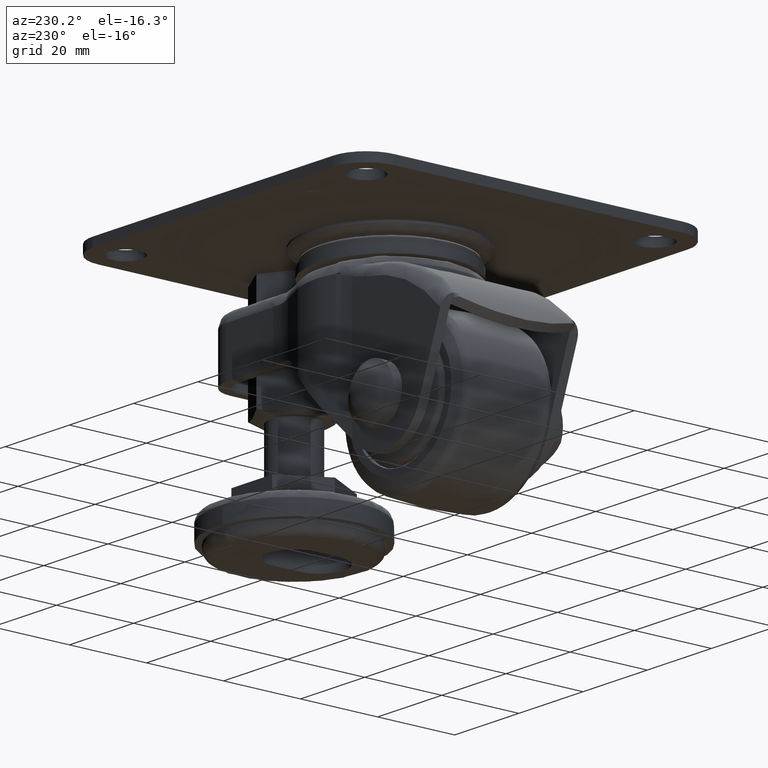
[diagram: clean part render]
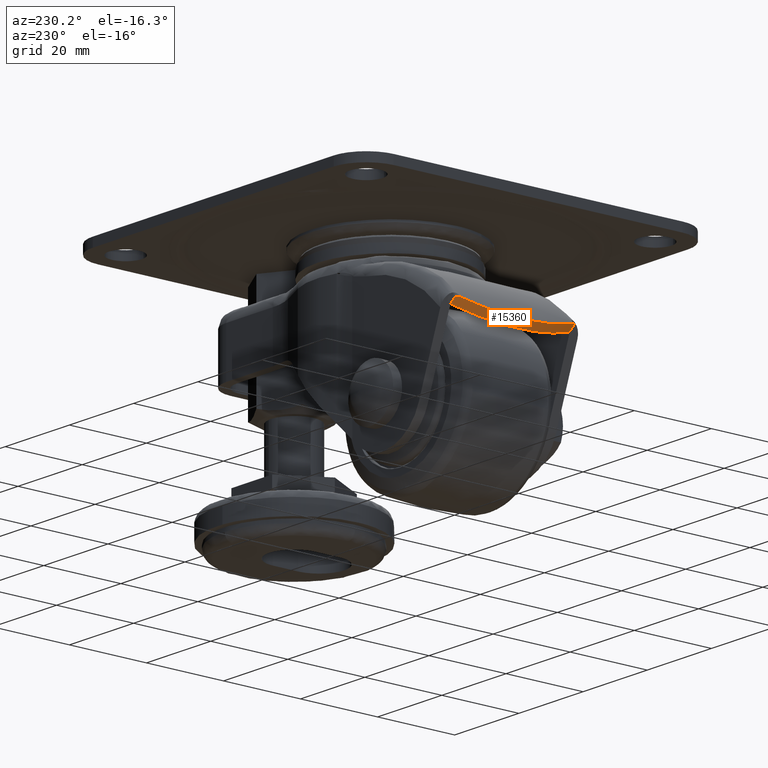
[diagram: same view with one face highlighted and labeled with its STEP entity id]
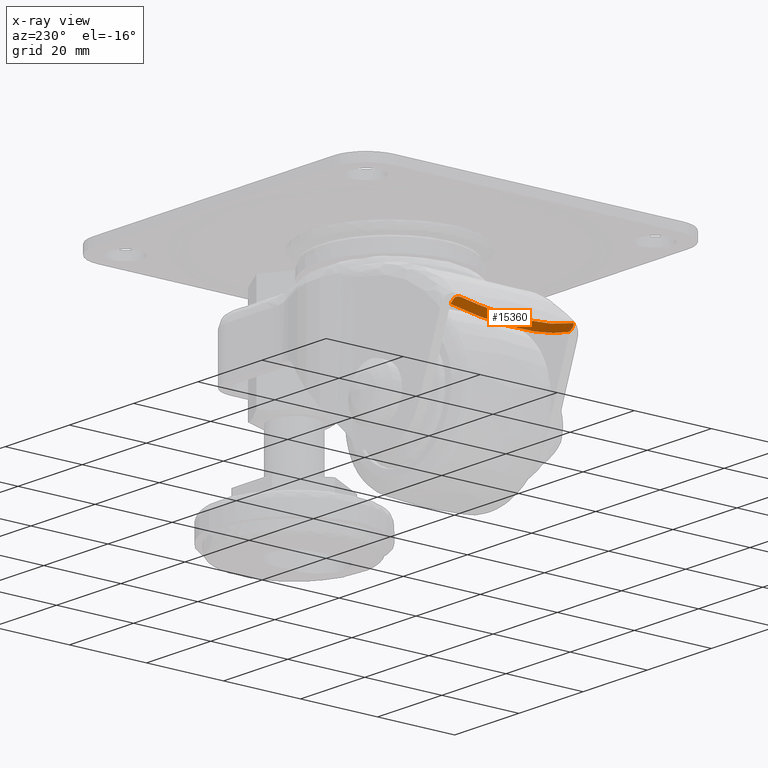
[diagram: x-ray of the same camera — body ghosted, the highlighted face saturated]
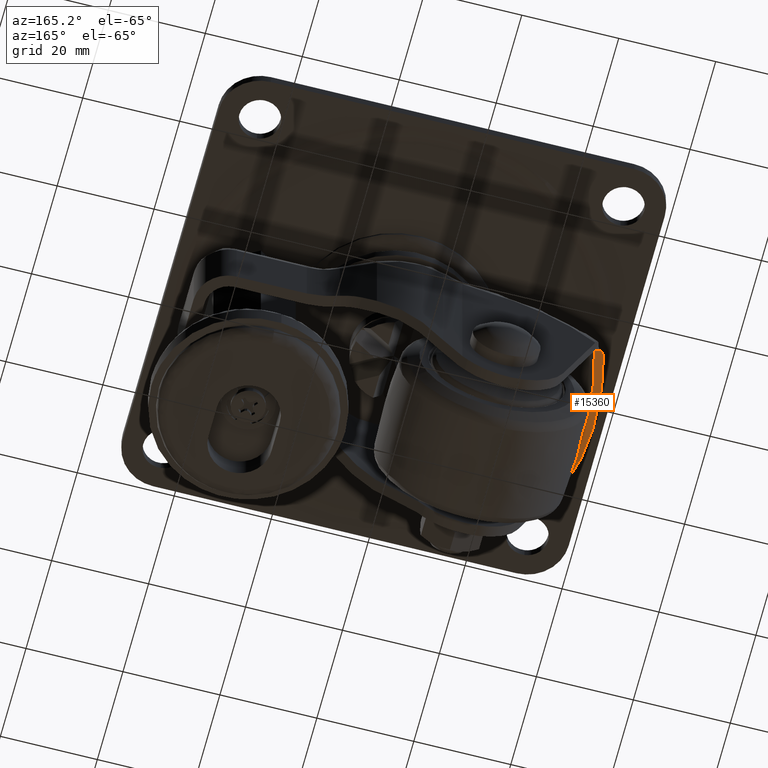
[diagram: same view with one face highlighted and labeled with its STEP entity id]
A machine part, auxiliary view. The second image highlights one B-rep face of the part: STEP entity #15360.
The next image is the same camera in x-ray: the body ghosted, the highlighted face saturated — about 0% of this face is hidden behind the body in this view.
A second angle (auxiliary view) of the same face is appended — the face is thin or edge-on in the first view.
In plain terms, the highlighted face is a freeform B-spline surface patch.
Its self-contained STEP definition (entity closure, byte-faithful):
#14622=CARTESIAN_POINT('',(-38.291130428110151,15.500000000000000,-24.245091393417798));
#14623=VERTEX_POINT('',#14622);
#14624=CARTESIAN_POINT('',(-37.403576146978452,15.500000000000000,-24.980469005644348));
#14625=VERTEX_POINT('',#14624);
#14641=CARTESIAN_POINT('',(-38.567269960919951,15.442372888455649,-24.051477014446551));
#14642=VERTEX_POINT('',#14641);
#14643=CARTESIAN_POINT('',(-38.567269960919951,15.442372888455649,-24.051477014446551));
#14644=CARTESIAN_POINT('',(-38.530455054789073,15.457184594975240,-24.072958606080888));
#14645=CARTESIAN_POINT('',(-38.493685415123430,15.469242684221211,-24.096063617767118));
#14646=CARTESIAN_POINT('',(-38.401038870963163,15.492564335049661,-24.158580234259201));
#14647=CARTESIAN_POINT('',(-38.344946439935178,15.499997955724989,-24.200503631190340));
#14648=CARTESIAN_POINT('',(-38.291130428110151,15.500000000000000,-24.245091393417798));
#14649=B_SPLINE_CURVE_WITH_KNOTS('',3,(#14643,#14644,#14645,#14646,#14647,#14648),.UNSPECIFIED.,.F.,.U.,(4,2,4),(0.792940615937839,0.874999999999997,1.0),.UNSPECIFIED.);
#14650=EDGE_CURVE('',#14642,#14623,#14649,.T.);
#14702=CARTESIAN_POINT('',(-37.341867927269647,15.322773212378950,-25.139278173644499));
#14703=VERTEX_POINT('',#14702);
#14711=CARTESIAN_POINT('',(-37.403576146978452,15.500000000000000,-24.980469005644348));
#14712=CARTESIAN_POINT('',(-37.385806023220368,15.439098316408369,-25.032455242646879));
#14713=CARTESIAN_POINT('',(-37.365099508445837,15.380110366604880,-25.085436166742650));
#14714=CARTESIAN_POINT('',(-37.341867927269647,15.322773212378950,-25.139278173644499));
#14715=QUASI_UNIFORM_CURVE('',3,(#14711,#14712,#14713,#14714),.UNSPECIFIED.,.F.,.U.);
#14716=EDGE_CURVE('',#14625,#14703,#14715,.T.);
#14881=CARTESIAN_POINT('',(-39.364622450098302,14.500000000000000,-23.943725296695408));
#14882=VERTEX_POINT('',#14881);
#14897=CARTESIAN_POINT('',(-39.364622450098302,14.500000000000000,-23.943725296695408));
#14898=CARTESIAN_POINT('',(-39.346180749021443,14.563902118176371,-23.922925437017678));
#14899=CARTESIAN_POINT('',(-39.323214529295271,14.626698842294481,-23.906215073698949));
#14900=CARTESIAN_POINT('',(-39.282307375210152,14.719319690102990,-23.887002900876549));
#14901=CARTESIAN_POINT('',(-39.267587912521407,14.749929195891591,-23.881581511590309));
#14902=CARTESIAN_POINT('',(-39.235949139587753,14.810613681160030,-23.872740867076729));
#14903=CARTESIAN_POINT('',(-39.218965256858617,14.840794261030149,-23.869313612841768));
#14904=CARTESIAN_POINT('',(-39.165017792508358,14.929777663748220,-23.862233277074932));
#14905=CARTESIAN_POINT('',(-39.125625149741353,14.986211526710090,-23.861786341068981));
#14906=CARTESIAN_POINT('',(-39.061481216353577,15.066597394215590,-23.867515155473789));
#14907=CARTESIAN_POINT('',(-39.039251776566282,15.092677098588840,-23.870498620885432));
#14908=CARTESIAN_POINT('',(-38.993039147681309,15.143355749499561,-23.878706127569810));
#14909=CARTESIAN_POINT('',(-38.968913408853822,15.168086767440551,-23.883969277260871));
#14910=CARTESIAN_POINT('',(-38.894925879053538,15.238801941387949,-23.903048719628231));
#14911=CARTESIAN_POINT('',(-38.843649150734279,15.281262396841880,-23.920024162821829));
#14912=CARTESIAN_POINT('',(-38.763797306693078,15.337816037137920,-23.952074273694461));
#14913=CARTESIAN_POINT('',(-38.736687111353000,15.355469430493660,-23.963863047420219));
#14914=CARTESIAN_POINT('',(-38.681432308334841,15.388247521869641,-23.989790700075311));
#14915=CARTESIAN_POINT('',(-38.653174808488572,15.403407878500991,-24.004001262570409));
#14916=CARTESIAN_POINT('',(-38.605811967124723,15.426119017758570,-24.029438442377430));
#14917=CARTESIAN_POINT('',(-38.586534766353388,15.434622963229151,-24.040235458682840));
#14918=CARTESIAN_POINT('',(-38.567269960919951,15.442372888455649,-24.051477014446551));
#14919=B_SPLINE_CURVE_WITH_KNOTS('',3,(#14897,#14898,#14899,#14900,#14901,#14902,#14903,#14904,#14905,#14906,#14907,#14908,#14909,#14910,#14911,#14912,#14913,#14914,#14915,#14916,#14917,#14918),.UNSPECIFIED.,.F.,.U.,(4,2,2,2,2,2,2,2,2,2,4),(0.0,0.124999999999988,0.187499999999982,0.249999999999976,0.374999999999974,0.437499999999976,0.499999999999979,0.624999999999986,0.687499999999990,0.749999999999993,0.792940615937839),.UNSPECIFIED.);
#14920=EDGE_CURVE('',#14882,#14642,#14919,.T.);
#15023=CARTESIAN_POINT('',(-38.567269960918452,-15.442372888455401,-24.051477014444298));
#15024=VERTEX_POINT('',#15023);
#15181=CARTESIAN_POINT('',(-38.291130428110151,-15.500000000000000,-24.245091393417798));
#15182=VERTEX_POINT('',#15181);
#15183=CARTESIAN_POINT('',(-38.291130428110151,-15.500000000000000,-24.245091393417798));
#15184=CARTESIAN_POINT('',(-38.344830633035173,-15.500000000000000,-24.200598420634272));
#15185=CARTESIAN_POINT('',(-38.399619621502033,-15.492802652998501,-24.159610487459311));
#15186=CARTESIAN_POINT('',(-38.483315112073527,-15.471919415017579,-24.103021324384741));
#15187=CARTESIAN_POINT('',(-38.511467550003729,-15.463262483893720,-24.084980470815559));
#15188=CARTESIAN_POINT('',(-38.549019954638013,-15.449544435776540,-24.062228949318850));
#15189=CARTESIAN_POINT('',(-38.558154201026937,-15.446038140801379,-24.056797405223250));
#15190=CARTESIAN_POINT('',(-38.567269960918452,-15.442372888455401,-24.051477014444298));
#15191=B_SPLINE_CURVE_WITH_KNOTS('',3,(#15183,#15184,#15185,#15186,#15187,#15188,#15189,#15190),.UNSPECIFIED.,.F.,.U.,(4,2,2,4),(0.0,0.125000000000019,0.187500000000022,0.207620805954866),.UNSPECIFIED.);
#15192=EDGE_CURVE('',#15182,#15024,#15191,.T.);
#15194=CARTESIAN_POINT('',(-37.403576146978452,-15.500000000000000,-24.980469005644348));
#15195=VERTEX_POINT('',#15194);
#15213=CARTESIAN_POINT('',(-37.341867927273199,-15.322773212366901,-25.139278173648801));
#15214=VERTEX_POINT('',#15213);
#15215=CARTESIAN_POINT('',(-37.341867927273199,-15.322773212366901,-25.139278173648801));
#15216=CARTESIAN_POINT('',(-37.365099508454783,-15.380110366593440,-25.085436166740450));
#15217=CARTESIAN_POINT('',(-37.385806023226273,-15.439098316398709,-25.032455242647739));
#15218=CARTESIAN_POINT('',(-37.403576146978452,-15.500000000000000,-24.980469005644348));
#15219=QUASI_UNIFORM_CURVE('',3,(#15215,#15216,#15217,#15218),.UNSPECIFIED.,.F.,.U.);
#15220=EDGE_CURVE('',#15214,#15195,#15219,.T.);
#15249=CARTESIAN_POINT('',(-39.364622450099851,-14.499999999999840,-23.943725296697149));
#15250=VERTEX_POINT('',#15249);
#15251=CARTESIAN_POINT('',(-38.567269960918452,-15.442372888455401,-24.051477014444298));
#15252=CARTESIAN_POINT('',(-38.586469871177513,-15.434651253337440,-24.040272134139670));
#15253=CARTESIAN_POINT('',(-38.605587722114223,-15.426222517038831,-24.029561601518051));
#15254=CARTESIAN_POINT('',(-38.680492542069551,-15.390358931880080,-23.989299851923199));
#15255=CARTESIAN_POINT('',(-38.735417818306303,-15.357838034520450,-23.963510434066560));
#15256=CARTESIAN_POINT('',(-38.816285063774039,-15.300692528499839,-23.930978078445001));
#15257=CARTESIAN_POINT('',(-38.842787428761618,-15.280366327525501,-23.921254054061471));
#15258=CARTESIAN_POINT('',(-38.894282888101031,-15.237765791807741,-23.904160533297439));
#15259=CARTESIAN_POINT('',(-38.944474639278972,-15.193073060515960,-23.889338179810171));
#15260=CARTESIAN_POINT('',(-38.992127058033127,-15.144320600449181,-23.878888156891080));
#15261=CARTESIAN_POINT('',(-39.038506395799530,-15.093540361639381,-23.870605000002659));
#15262=CARTESIAN_POINT('',(-39.061079837176322,-15.067091008762191,-23.867556234513319));
#15263=CARTESIAN_POINT('',(-39.125639588303009,-14.986227258945441,-23.861766027798279));
#15264=CARTESIAN_POINT('',(-39.164946319528127,-14.929842438212701,-23.862253212436851));
#15265=CARTESIAN_POINT('',(-39.236302035162062,-14.812257491735179,-23.871556132523381));
#15266=CARTESIAN_POINT('',(-39.268434757321202,-14.750702520115560,-23.880502449895399));
#15267=CARTESIAN_POINT('',(-39.323232002466412,-14.626689670755310,-23.906206577418601));
#15268=CARTESIAN_POINT('',(-39.346209952405196,-14.563801486799740,-23.922958056218761));
#15269=CARTESIAN_POINT('',(-39.364622450099851,-14.499999999999840,-23.943725296697149));
#15270=B_SPLINE_CURVE_WITH_KNOTS('',3,(#15251,#15252,#15253,#15254,#15255,#15256,#15257,#15258,#15259,#15260,#15261,#15262,#15263,#15264,#15265,#15266,#15267,#15268,#15269),.UNSPECIFIED.,.F.,.U.,(4,2,2,2,1,2,2,2,2,4),(0.207620805954866,0.250000000000025,0.375000000000020,0.437500000000017,0.500000000000015,0.562500000000012,0.625000000000009,0.750000000000006,0.875000000000003,1.0),.UNSPECIFIED.);
#15271=EDGE_CURVE('',#15024,#15250,#15270,.T.);
#15290=CARTESIAN_POINT('',(-38.820514142622010,16.511535236476849,-23.162514071398029));
#15291=CARTESIAN_POINT('',(-36.926400522755209,16.511535236476849,-24.731870200568000));
#15292=CARTESIAN_POINT('',(-44.264982823725873,-0.234939291731574,-29.733643523876985));
#15293=CARTESIAN_POINT('',(-42.370869203859087,-0.234939291731578,-31.302999653046946));
#15294=CARTESIAN_POINT('',(-38.698238509067316,-16.882362685445027,-23.014935113002977));
#15295=CARTESIAN_POINT('',(-36.804124889200530,-16.882362685445038,-24.584291242172945));
#15303=(BOUNDED_SURFACE()B_SPLINE_SURFACE(1,2,((#15290,#15292,#15294),(#15291,#15293,#15295)),.UNSPECIFIED.,.F.,.F.,.U.)B_SPLINE_SURFACE_WITH_KNOTS((2,2),(3,3),(0.0,2.459785572997827),(0.0,35.368567909554407),.UNSPECIFIED.)GEOMETRIC_REPRESENTATION_ITEM()RATIONAL_B_SPLINE_SURFACE(((1.0,0.887731796706841,0.998567273619680),(1.0,0.887731796706841,0.998567273619680)))REPRESENTATION_ITEM('')SURFACE());
#15304=CARTESIAN_POINT('',(-38.291130428110151,15.500000000000000,-24.245091393417798));
#15305=CARTESIAN_POINT('',(-37.403576146978452,15.500000000000000,-24.980469005644348));
#15306=QUASI_UNIFORM_CURVE('',1,(#15304,#15305),.UNSPECIFIED.,.F.,.U.);
#15307=EDGE_CURVE('',#14623,#14625,#15306,.T.);
#15308=ORIENTED_EDGE('',*,*,#15307,.T.);
#15309=ORIENTED_EDGE('',*,*,#14716,.T.);
#15310=CARTESIAN_POINT('',(-37.341867927269661,15.322773212378941,-25.139278173644499));
#15311=CARTESIAN_POINT('',(-41.883692280350566,7.327472E-012,-30.620972995049996));
#15312=CARTESIAN_POINT('',(-37.341867927273228,-15.322773212366901,-25.139278173648808));
#15320=(BOUNDED_CURVE()B_SPLINE_CURVE(2,(#15310,#15311,#15312),.UNSPECIFIED.,.F.,.U.)CURVE()GEOMETRIC_REPRESENTATION_ITEM()QUASI_UNIFORM_CURVE()RATIONAL_B_SPLINE_CURVE((1.0,0.906903964838035,1.0))REPRESENTATION_ITEM(''));
#15321=EDGE_CURVE('',#14703,#15214,#15320,.T.);
#15322=ORIENTED_EDGE('',*,*,#15321,.T.);
#15323=ORIENTED_EDGE('',*,*,#15220,.T.);
#15324=CARTESIAN_POINT('',(-38.291130428110151,-15.500000000000000,-24.245091393417798));
#15325=CARTESIAN_POINT('',(-37.403576146978452,-15.500000000000000,-24.980469005644348));
#15326=QUASI_UNIFORM_CURVE('',1,(#15324,#15325),.UNSPECIFIED.,.F.,.U.);
#15327=EDGE_CURVE('',#15182,#15195,#15326,.T.);
#15328=ORIENTED_EDGE('',*,*,#15327,.F.);
#15329=ORIENTED_EDGE('',*,*,#15192,.T.);
#15330=ORIENTED_EDGE('',*,*,#15271,.T.);
#15331=CARTESIAN_POINT('',(-39.364622450099851,-14.499999999999840,-23.943725296697149));
#15332=CARTESIAN_POINT('',(-39.694855033760952,-13.355704957692170,-24.316190759689260));
#15333=CARTESIAN_POINT('',(-39.976401756422597,-12.194041969249620,-24.648111589216160));
#15334=CARTESIAN_POINT('',(-40.453982852830137,-9.836906915534449,-25.225314483691580));
#15335=CARTESIAN_POINT('',(-40.649992394765029,-8.641432868592251,-25.470607976810818));
#15336=CARTESIAN_POINT('',(-40.962995030302103,-6.216520597693974,-25.868422050730668));
#15337=CARTESIAN_POINT('',(-41.080001109845327,-4.986946973800852,-26.020967845633908));
#15338=CARTESIAN_POINT('',(-41.236503571690399,-2.493146289777144,-26.226134189310020));
#15339=CARTESIAN_POINT('',(-41.274674246854133,-1.250514300520187,-26.276972303082989));
#15340=CARTESIAN_POINT('',(-41.275167219853522,1.226512754589974,-26.277625362757021));
#15341=CARTESIAN_POINT('',(-41.237474718011029,2.460906954386864,-26.227435005812481));
#15342=CARTESIAN_POINT('',(-41.085119662511211,4.921496804825250,-26.027651383506520));
#15343=CARTESIAN_POINT('',(-40.970470009787043,6.147692931500137,-25.878057318220080));
#15344=CARTESIAN_POINT('',(-40.775024737667323,7.675180933493532,-25.629489474802519));
#15345=CARTESIAN_POINT('',(-40.733315136551752,7.980415025750816,-25.576695322530089));
#15346=CARTESIAN_POINT('',(-40.644496006380272,8.590350156154901,-25.464952258852708));
#15347=CARTESIAN_POINT('',(-40.597458731588588,8.894521029264032,-25.406095141849129));
#15348=CARTESIAN_POINT('',(-40.448703455363777,9.802289404698650,-25.221195241005880));
#15349=CARTESIAN_POINT('',(-40.339211926531377,10.402116158320380,-25.086649674587211));
#15350=CARTESIAN_POINT('',(-39.978592932975609,12.185670182378781,-24.650668149595418));
#15351=CARTESIAN_POINT('',(-39.695487482134091,13.353513449122200,-24.316904090801280));
#15352=CARTESIAN_POINT('',(-39.364622450098302,14.500000000000000,-23.943725296695408));
#15353=B_SPLINE_CURVE_WITH_KNOTS('',3,(#15331,#15332,#15333,#15334,#15335,#15336,#15337,#15338,#15339,#15340,#15341,#15342,#15343,#15344,#15345,#15346,#15347,#15348,#15349,#15350,#15351,#15352),.UNSPECIFIED.,.F.,.U.,(4,2,2,2,2,2,2,2,2,2,4),(0.0,0.125000000000000,0.250000000000000,0.375000000000000,0.500000000000000,0.625000000000000,0.750000000000000,0.781250000000000,0.812500000000000,0.875000000000000,1.0),.UNSPECIFIED.);
#15354=EDGE_CURVE('',#15250,#14882,#15353,.T.);
#15355=ORIENTED_EDGE('',*,*,#15354,.T.);
#15356=ORIENTED_EDGE('',*,*,#14920,.T.);
#15357=ORIENTED_EDGE('',*,*,#14650,.T.);
#15358=EDGE_LOOP('',(#15308,#15309,#15322,#15323,#15328,#15329,#15330,#15355,#15356,#15357));
#15359=FACE_OUTER_BOUND('',#15358,.T.);
#15360=ADVANCED_FACE('',(#15359),#15303,.T.);